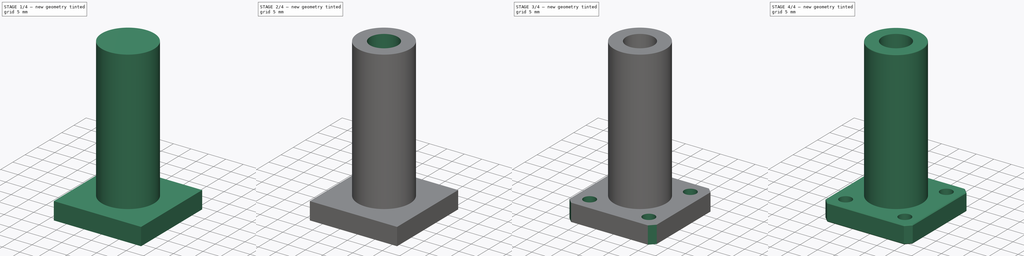
[diagram: build sequence overview — one tinted view per stage of 4, left to right]
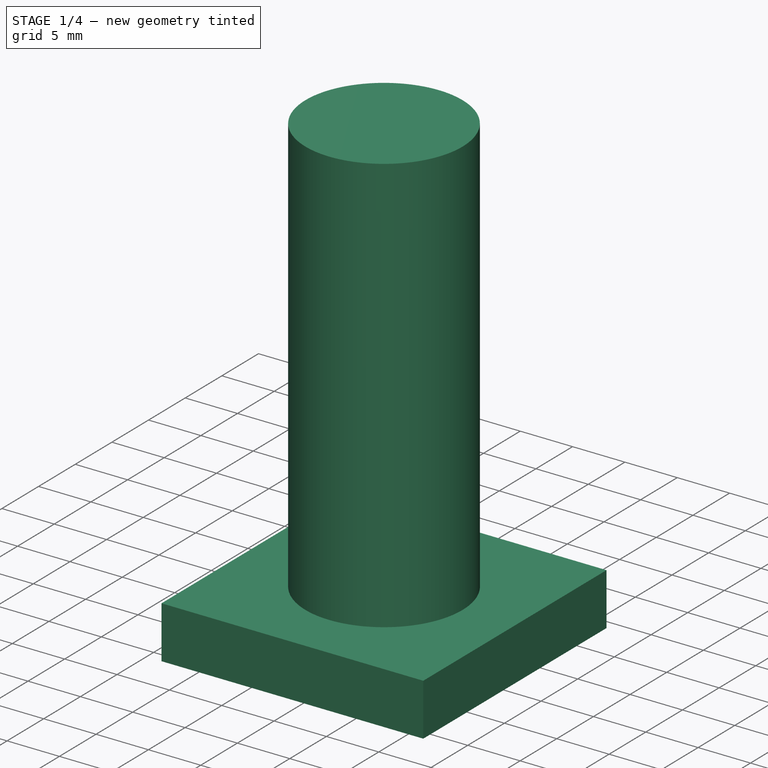
[diagram: stage 1 of 4 — iso view after this stage's code; geometry added in this stage tinted green]
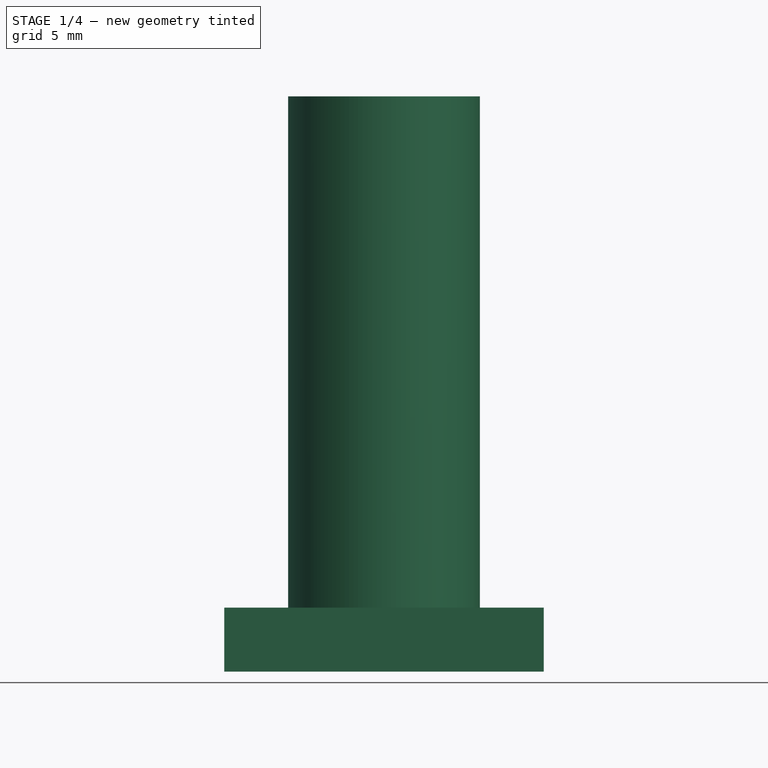
[diagram: stage 1 of 4 — front view after this stage's code; geometry added in this stage tinted green]
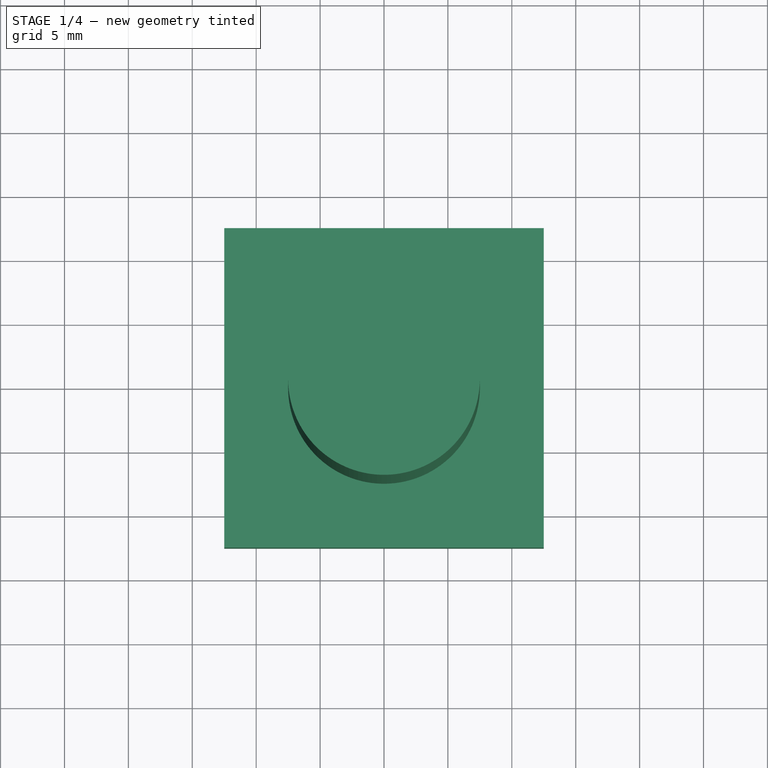
[diagram: stage 1 of 4 — top view after this stage's code; geometry added in this stage tinted green]
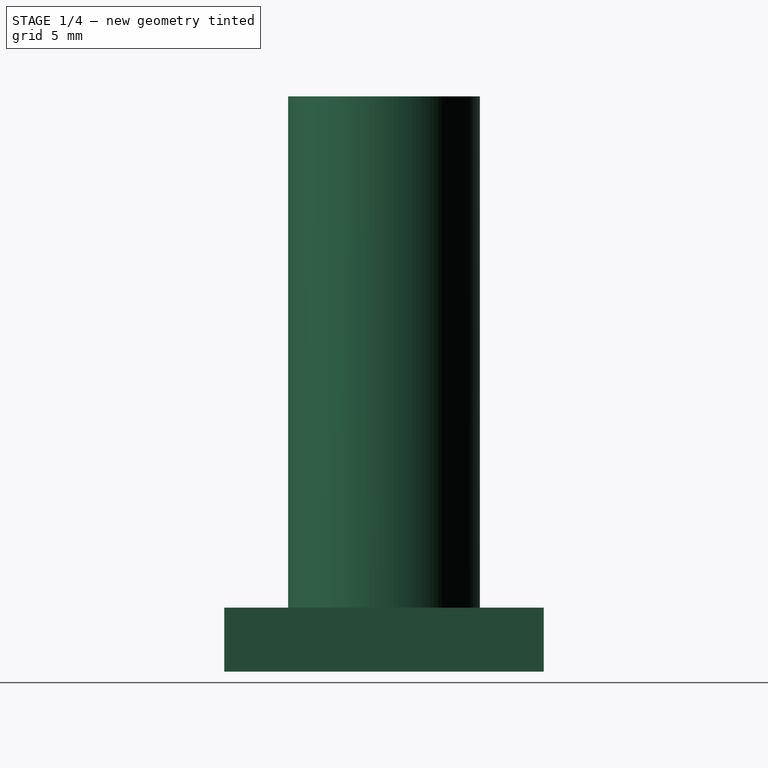
[diagram: stage 1 of 4 — right view after this stage's code; geometry added in this stage tinted green]
FCSTD DOCUMENT  (FreeCAD 0.17R13541 (Git))
Label: 直线法兰轴承
License: All rights reserved
LicenseURL: http://en.wikipedia.org/wiki/All_rights_reserved
objects: Sketcher::SketchObject×7, PartDesign::Pocket×3, PartDesign::Pad×2, PartDesign::PolarPattern×2, PartDesign::Chamfer×2, PartDesign::Fillet×1, PartDesign::Body×1
note: 23 computed .brp shape members not serialized (recipe doc carries the construction recipe); baked Part::Feature solids carry a one-line shape summary decoded from their .brp

FEATURE [Sketcher::SketchObject] Sketch
  MapMode = 5
  Support = -> [XY_Plane]
  sketch-geometry (5):
    g0: LineSegment StartX=12.5 StartY=-12.5 StartZ=0 EndX=12.5 EndY=12.5 EndZ=0
    g1: LineSegment StartX=12.5 StartY=12.5 StartZ=0 EndX=-12.5 EndY=12.5 EndZ=0
    g2: LineSegment StartX=-12.5 StartY=12.5 StartZ=0 EndX=-12.5 EndY=-12.5 EndZ=0
    g3: LineSegment StartX=-12.5 StartY=-12.5 StartZ=0 EndX=12.5 EndY=-12.5 EndZ=0
    g4: Circle [constr] CenterX=0 CenterY=0 CenterZ=0 NormalX=0 NormalY=0 NormalZ=1 AngleXU=0 Radius=17.6777
  constraints (14):
    c: Coincident(g0,g1)
    c: Coincident(g1,g2)
    c: Coincident(g2,g3)
    c: Coincident(g3,g0)
    c: Equal(g0,g1)
    c: Equal(g0,g2)
    c: Equal(g0,g3)
    c: PointOnObject(g0,g4)
    c: PointOnObject(g1,g4)
    c: PointOnObject(g2,g4)
    c: PointOnObject(g3,g4)
    c: Coincident(g4,g-1)
    c: Vertical(g0)
    c: DistanceX(g1,g0) = 25
FEATURE [PartDesign::Pad] Pad
  Length = 5
  Length2 = 100
  Profile = -> Sketch
  Type = 0
FEATURE [Sketcher::SketchObject] Sketch001
  MapMode = 5
  Placement = pos=(0,0,5) rot=(0,0,1;0rad)
  Support = -> [Pad]
  sketch-geometry (1):
    g0: Circle CenterX=0 CenterY=0 CenterZ=0 NormalX=0 NormalY=0 NormalZ=1 AngleXU=0 Radius=7.5
  constraints (2):
    c: Coincident(g0,g-1)
    c: Radius(g0) = 7.5
FEATURE [PartDesign::Pad] Pad001
  BaseFeature = -> Pad
  Length = 40
  Length2 = 100
  Profile = -> Sketch001
  Type = 0
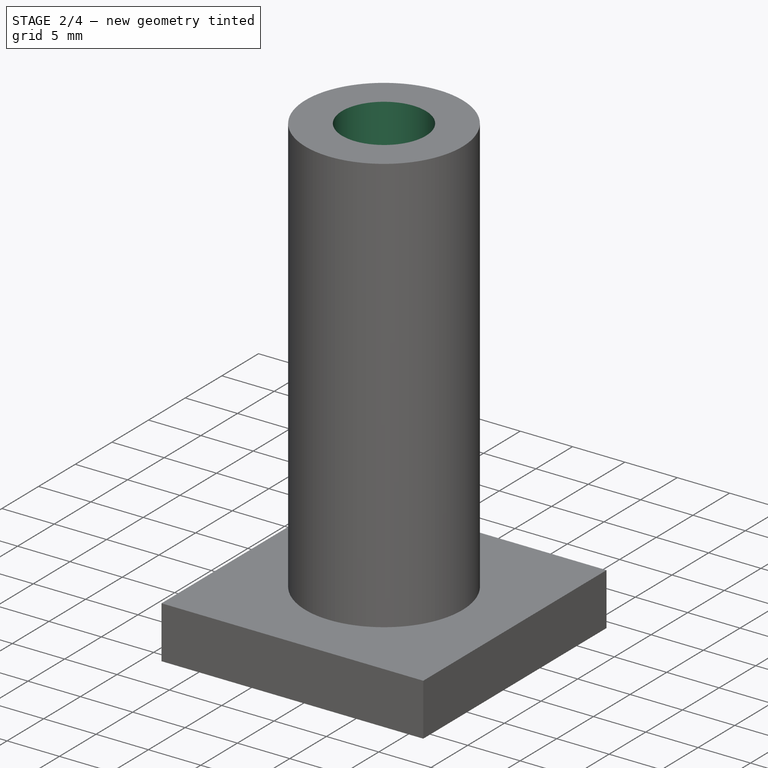
[diagram: stage 2 of 4 — iso view after this stage's code; geometry added in this stage tinted green]
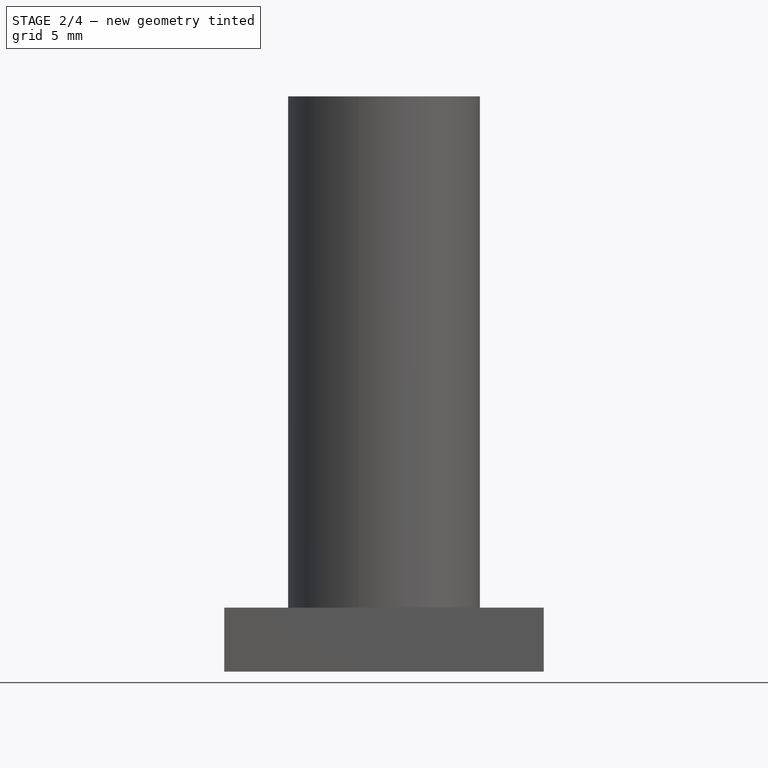
[diagram: stage 2 of 4 — front view after this stage's code; geometry added in this stage tinted green]
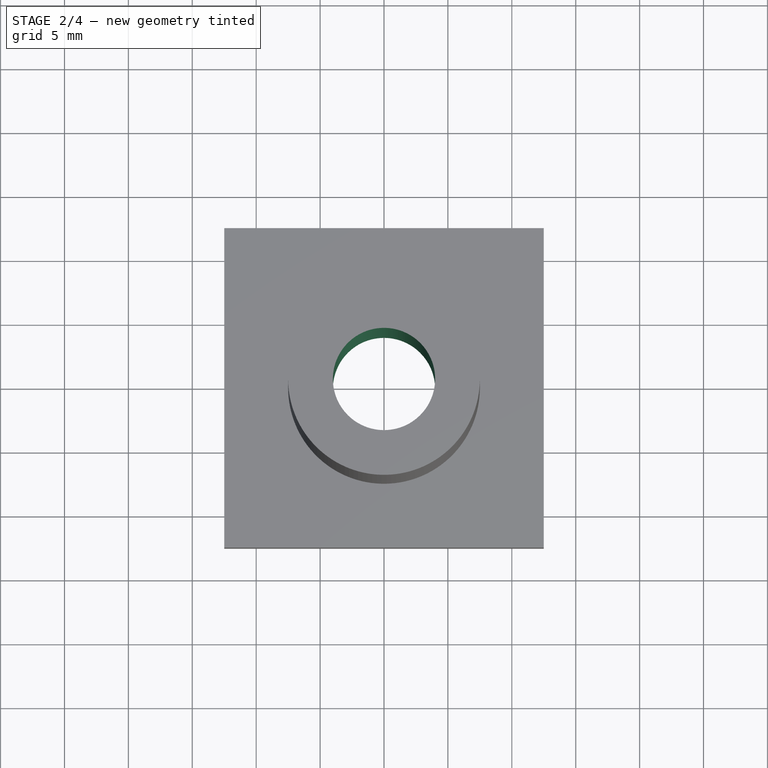
[diagram: stage 2 of 4 — top view after this stage's code; geometry added in this stage tinted green]
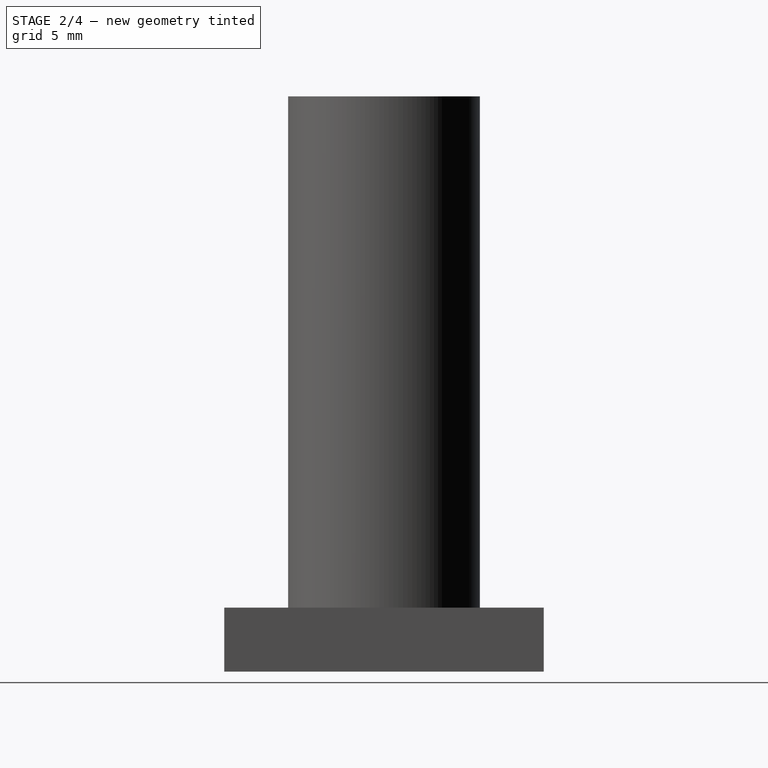
[diagram: stage 2 of 4 — right view after this stage's code; geometry added in this stage tinted green]
FEATURE [Sketcher::SketchObject] Sketch002
  MapMode = 5
  Placement = pos=(0,0,0) rot=(1,0,0;3.14159rad)
  Support = -> [Pad001]
FEATURE [Sketcher::SketchObject] Sketch003
  MapMode = 5
  Placement = pos=(0,0,0) rot=(1,0,0;3.14159rad)
  Support = -> [Pad001]
FEATURE [Sketcher::SketchObject] Sketch004
  MapMode = 5
  Placement = pos=(0,0,0) rot=(1,0,0;3.14159rad)
  Support = -> [Pad001]
  sketch-geometry (1):
    g0: Circle CenterX=0 CenterY=0 CenterZ=0 NormalX=0 NormalY=0 NormalZ=1 AngleXU=0 Radius=4
  constraints (2):
    c: Coincident(g0,g-1)
    c: Radius(g0) = 4
FEATURE [PartDesign::Pocket] Pocket
  BaseFeature = -> Pad001
  Length = 5
  Length2 = 100
  Profile = -> Sketch004
  Type = 1
FEATURE [Sketcher::SketchObject] Sketch005
  MapMode = 5
  Placement = pos=(0,0,0) rot=(1,0,0;3.14159rad)
  Support = -> [Pocket]
  sketch-geometry (2):
    g0: LineSegment [constr] StartX=0 StartY=0 StartZ=0 EndX=-8.48528 EndY=8.48528 EndZ=0
    g1: Circle CenterX=-8.48528 CenterY=8.48528 CenterZ=0 NormalX=0 NormalY=0 NormalZ=1 AngleXU=0 Radius=3
  constraints (5):
    c: Coincident(g0,g-1)
    c: Angle(g-2,g0) = 0.785398
    c: Distance(g-1,g0) = 12
    c: Coincident(g1,g0)
    c: Radius(g1) = 3
FEATURE [PartDesign::Pocket] Pocket001
  BaseFeature = -> Pocket
  Length = 3.1
  Length2 = 100
  Profile = -> Sketch005
  Type = 0
FEATURE [PartDesign::PolarPattern] PolarPattern
  Angle = 360
  Axis = -> Sketch005 [N_Axis]
  BaseFeature = -> Pocket001
  Occurrences = 4
  Originals = -> [Pocket001]
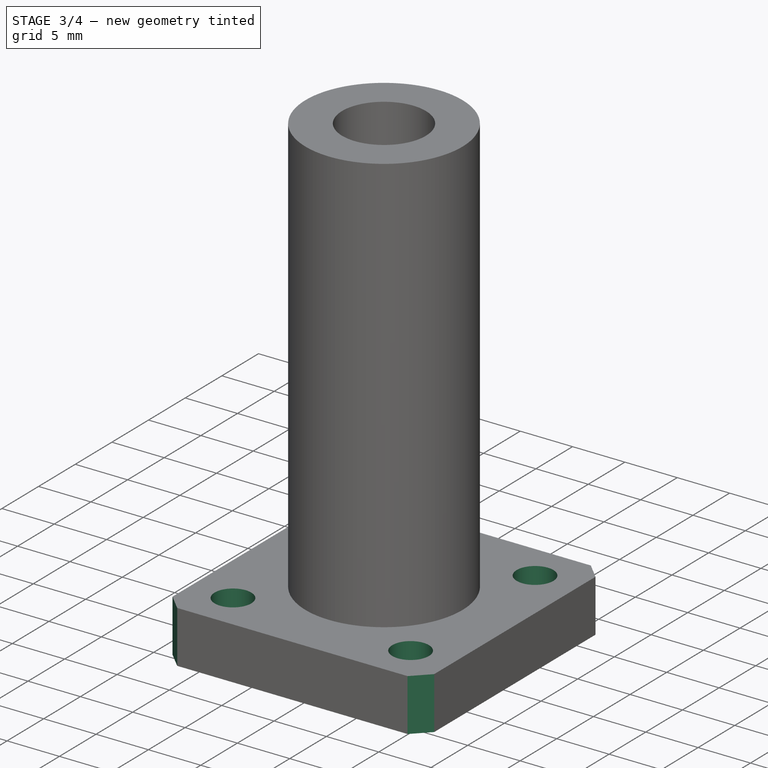
[diagram: stage 3 of 4 — iso view after this stage's code; geometry added in this stage tinted green]
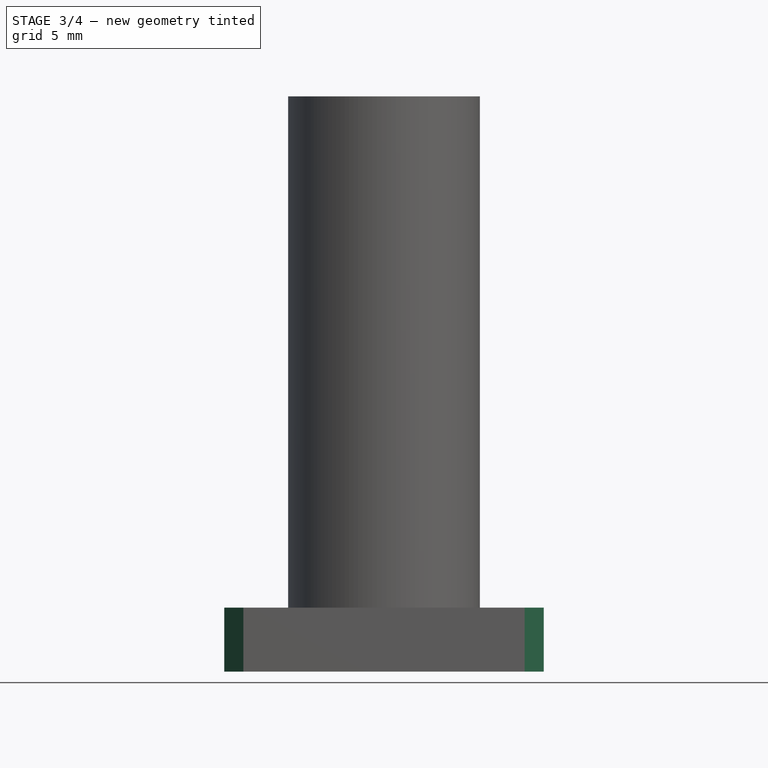
[diagram: stage 3 of 4 — front view after this stage's code; geometry added in this stage tinted green]
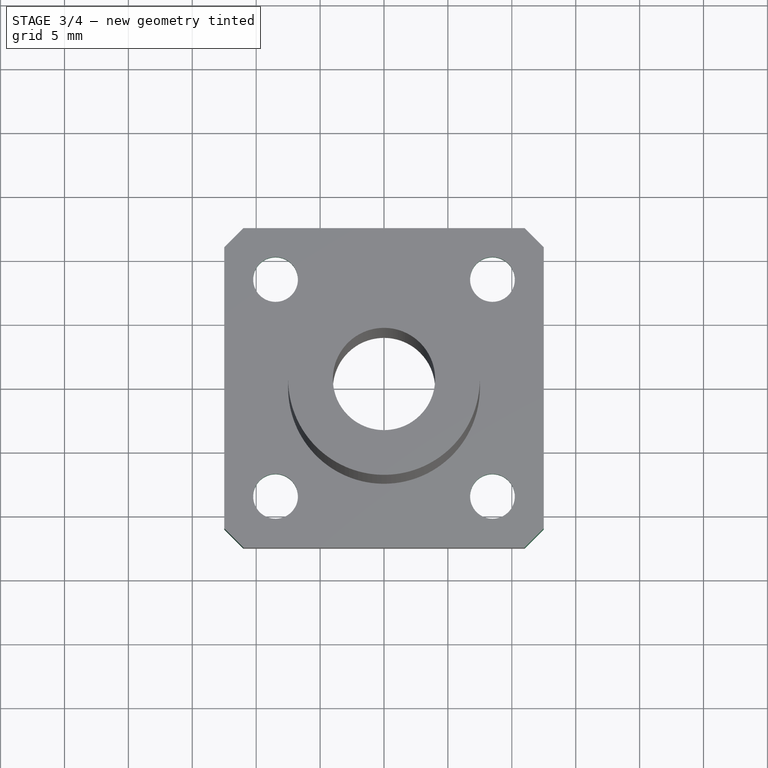
[diagram: stage 3 of 4 — top view after this stage's code; geometry added in this stage tinted green]
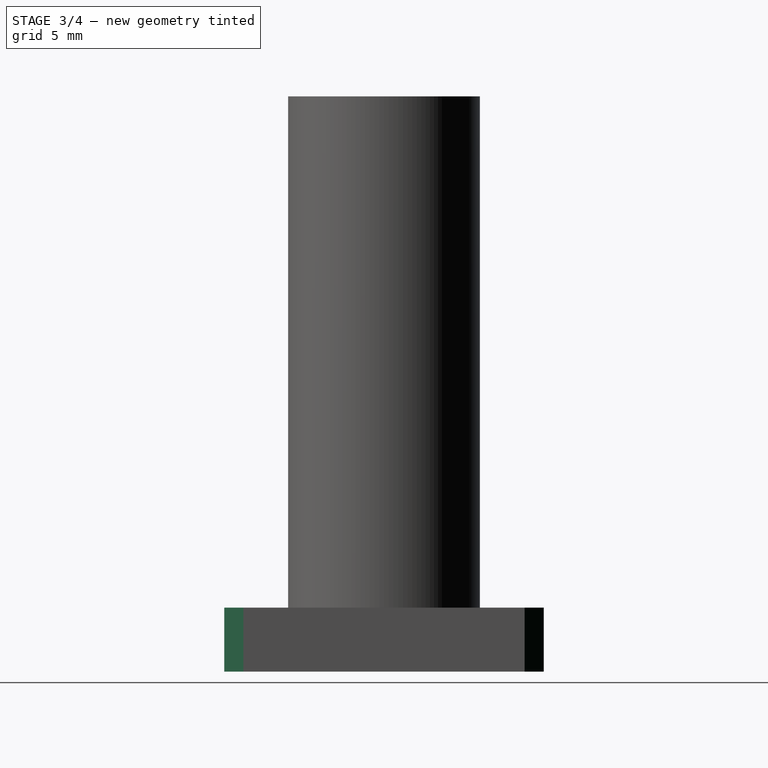
[diagram: stage 3 of 4 — right view after this stage's code; geometry added in this stage tinted green]
FEATURE [Sketcher::SketchObject] Sketch006
  ExternalGeometry = -> [PolarPattern]
  MapMode = 5
  Placement = pos=(0,0,3.1) rot=(1,0,0;3.14159rad)
  Support = -> [PolarPattern]
  sketch-geometry (1):
    g0: Circle CenterX=-8.48528 CenterY=8.48528 CenterZ=0 NormalX=0 NormalY=0 NormalZ=1 AngleXU=0 Radius=1.75
  constraints (2):
    c: Coincident(g0,g-3)
    c: Radius(g0) = 1.75
FEATURE [PartDesign::Pocket] Pocket002
  BaseFeature = -> PolarPattern
  Length = 5
  Length2 = 100
  Profile = -> Sketch006
  Type = 1
FEATURE [PartDesign::PolarPattern] PolarPattern001
  Angle = 360
  Axis = -> Sketch006 [N_Axis]
  BaseFeature = -> Pocket002
  Occurrences = 4
  Originals = -> [Pocket002]
FEATURE [PartDesign::Chamfer] Chamfer
  Base = -> PolarPattern001 [Edge8,Edge5,Edge1,Edge2]
  BaseFeature = -> PolarPattern001
  Size = 1.5
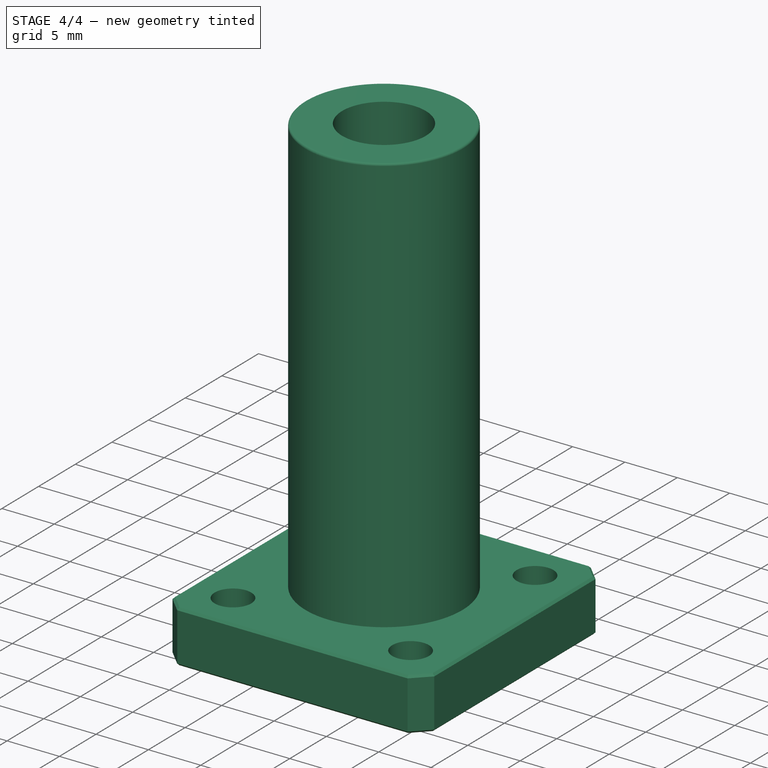
[diagram: stage 4 of 4 — iso view after this stage's code; geometry added in this stage tinted green]
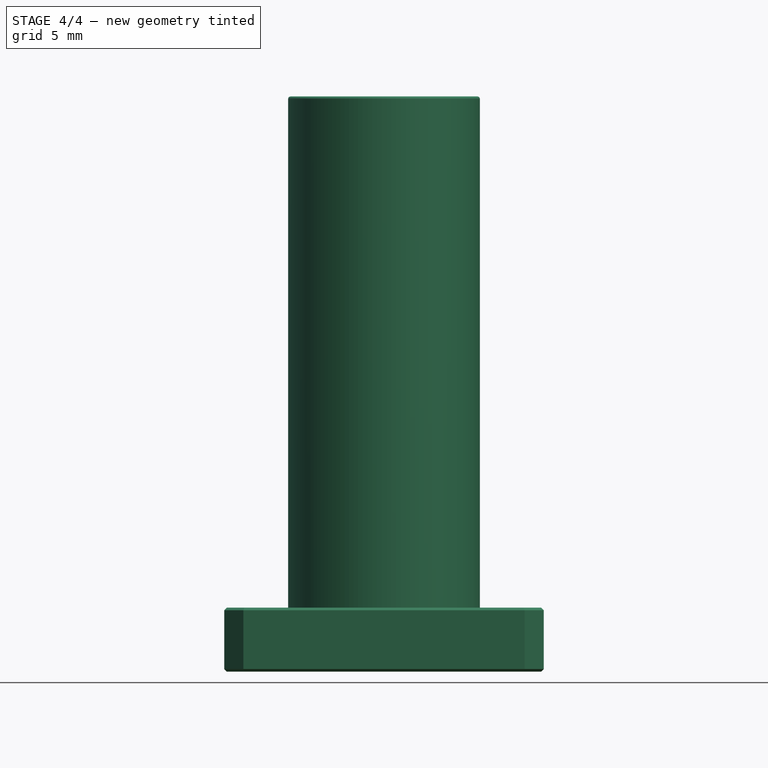
[diagram: stage 4 of 4 — front view after this stage's code; geometry added in this stage tinted green]
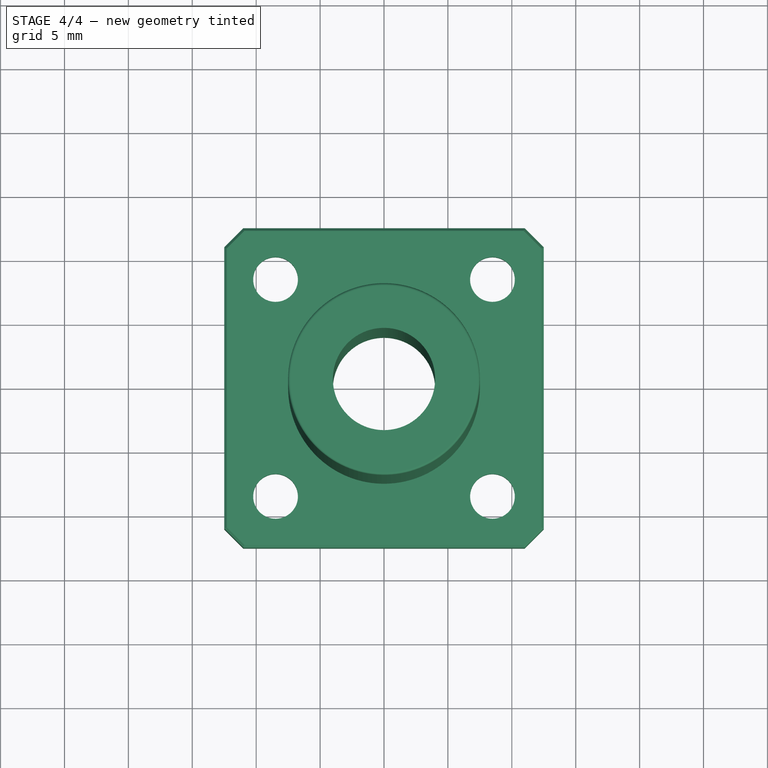
[diagram: stage 4 of 4 — top view after this stage's code; geometry added in this stage tinted green]
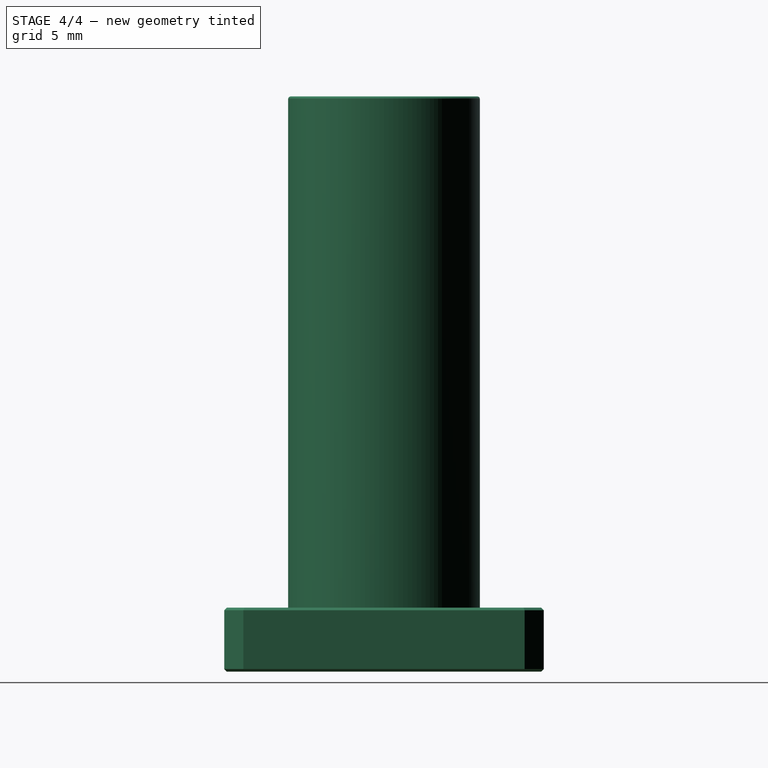
[diagram: stage 4 of 4 — right view after this stage's code; geometry added in this stage tinted green]
FEATURE [PartDesign::Chamfer] Chamfer001
  Base = -> Chamfer [Edge10,Edge8,Edge6,Edge1,Edge5,Edge7,Edge9,Edge11,Edge24,Edge22,Edge20,Edge4,Edge21,Edge23,Edge25,Edge18]
  BaseFeature = -> Chamfer
  Size = 0.2
FEATURE [PartDesign::Fillet] Fillet
  Base = -> Chamfer001 [Edge79]
  BaseFeature = -> Chamfer001
  Radius = 0.2
FEATURE [PartDesign::Body] Body
  Group = -> [Sketch,Pad,Sketch001,Pad001,Sketch002,Sketch003,Sketch004,Pocket,Sketch005,Pocket001,PolarPattern,Sketch006,Pocket002,PolarPattern001,Chamfer,Chamfer001,Fillet]
  Origin = -> Origin
  Tip = -> Fillet
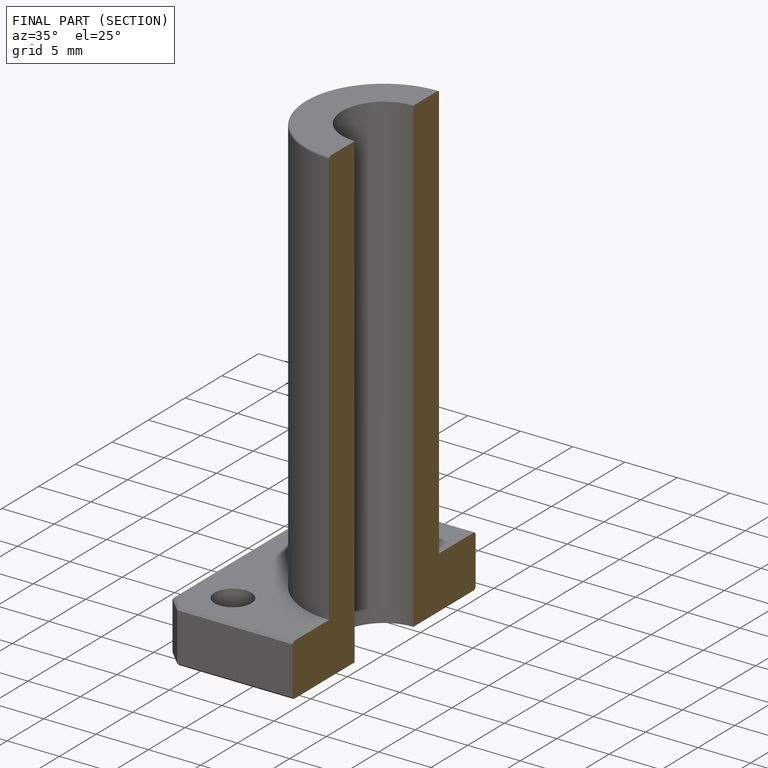
[diagram: finished part — half-section view (interior)]
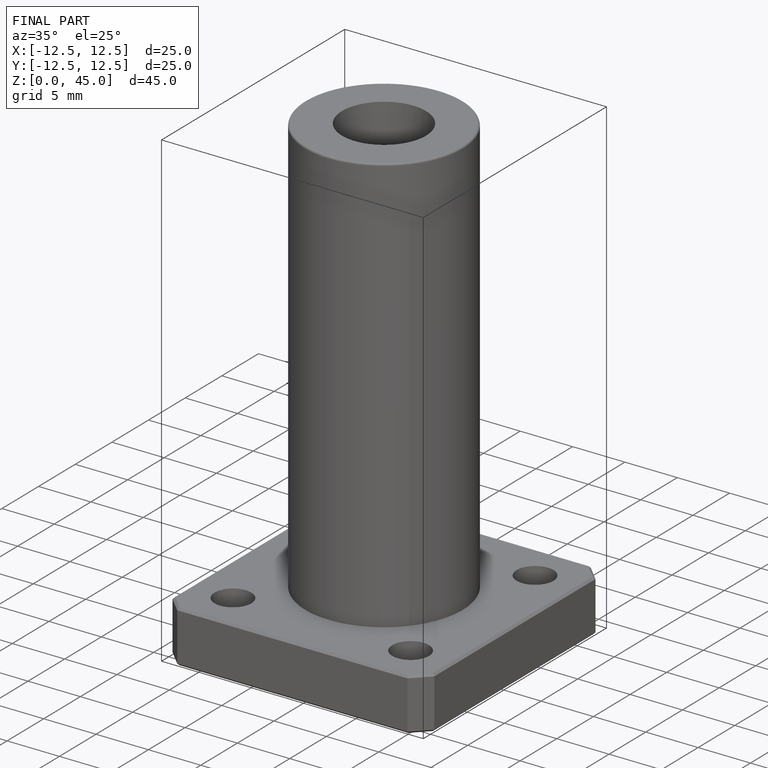
[diagram: finished part — iso view with bounding-box wireframe]
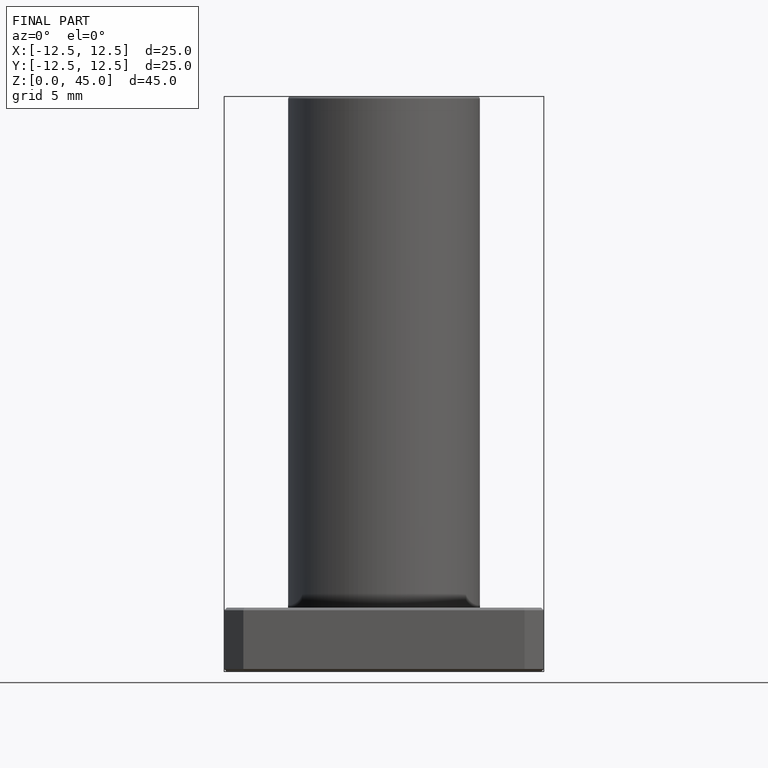
[diagram: finished part — front view with bounding-box wireframe]
